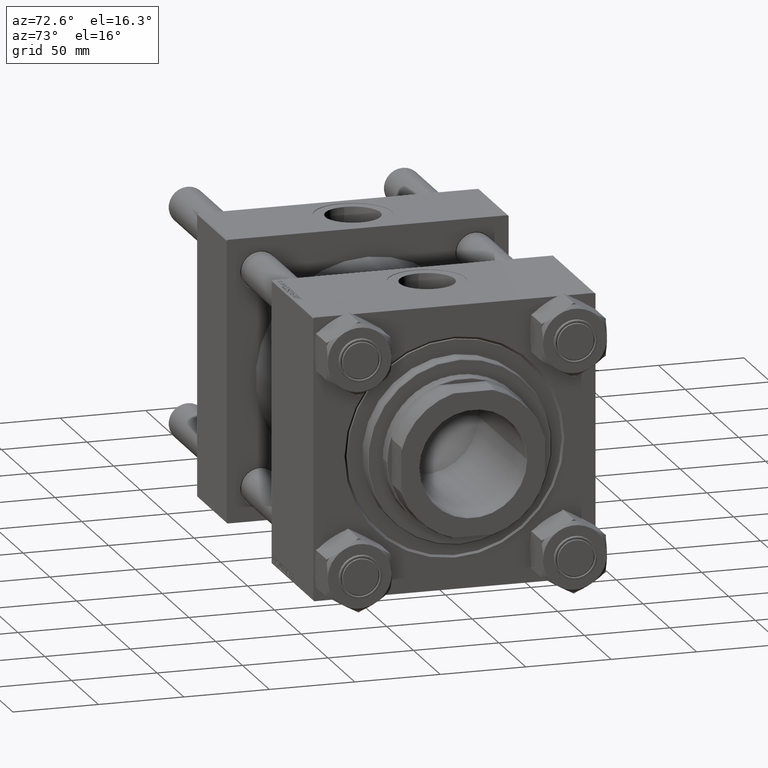
[diagram: clean part render]
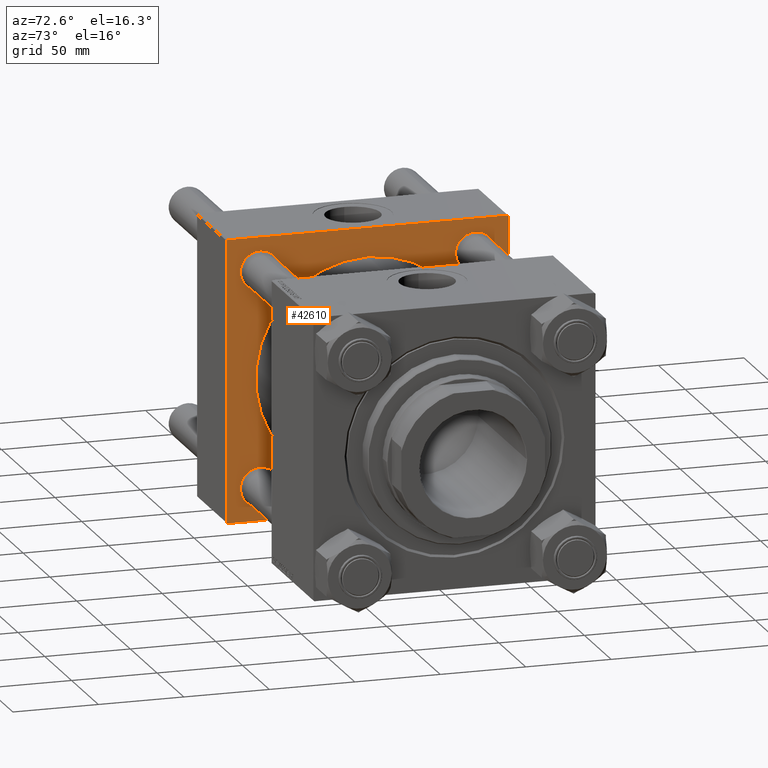
[diagram: same view with one face highlighted and labeled with its STEP entity id]
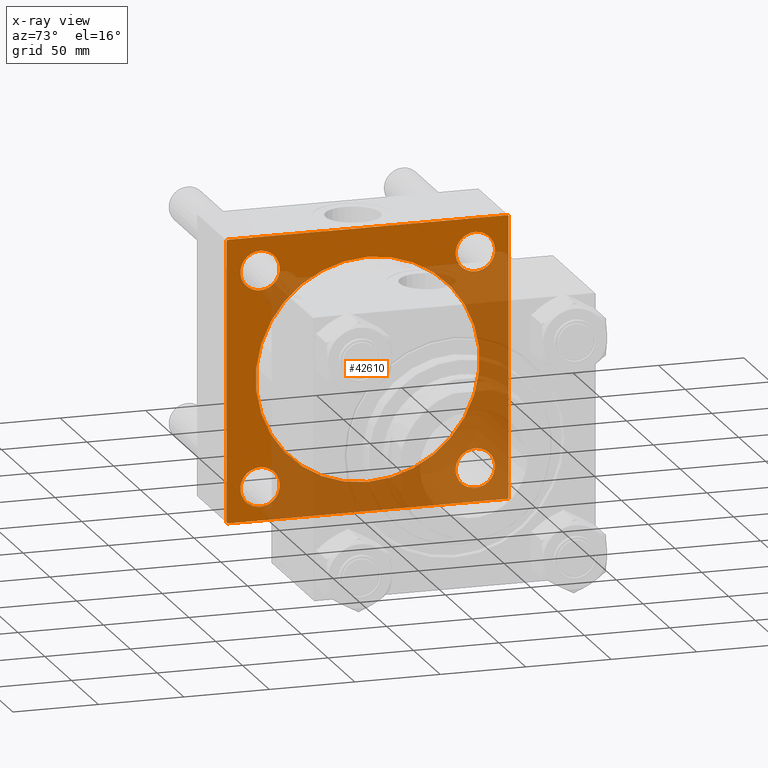
[diagram: x-ray of the same camera — body ghosted, the highlighted face saturated]
A machine part, auxiliary view. The second image highlights one B-rep face of the part: STEP entity #42610.
The next image is the same camera in x-ray: the body ghosted, the highlighted face saturated — about 52% of this face is hidden behind the body in this view.
In plain terms, the highlighted planar face has unit normal (-1, 0, 0).
Its self-contained STEP definition (entity closure, byte-faithful):
#325 = LINE ( 'NONE', #11535, #37252 ) ;
#398 = CIRCLE ( 'NONE', #1214, 11.49999999999995381 ) ;
#715 = VECTOR ( 'NONE', #38344, 1000.000000000000000 ) ;
#881 = ORIENTED_EDGE ( 'NONE', *, *, #7291, .T. ) ;
#1097 = VECTOR ( 'NONE', #24619, 1000.000000000000000 ) ;
#1214 = AXIS2_PLACEMENT_3D ( 'NONE', #16444, #15944, #4735 ) ;
#1693 = AXIS2_PLACEMENT_3D ( 'NONE', #19145, #38223, #47086 ) ;
#1729 = AXIS2_PLACEMENT_3D ( 'NONE', #31604, #3633, #26787 ) ;
#1897 = VECTOR ( 'NONE', #6964, 1000.000000000000114 ) ;
#2543 = ORIENTED_EDGE ( 'NONE', *, *, #25006, .T. ) ;
#2871 = EDGE_LOOP ( 'NONE', ( #43222, #21492 ) ) ;
#3069 = DIRECTION ( 'NONE',  ( -1.000000000000000000, 0.000000000000000000, 0.000000000000000000 ) ) ;
#3503 = VERTEX_POINT ( 'NONE', #37950 ) ;
#3580 = EDGE_CURVE ( 'NONE', #10793, #30184, #16310, .T. ) ;
#3611 = CARTESIAN_POINT ( 'NONE',  ( 55.00000000000000000, -82.49999999999997158, 82.50000000000001421 ) ) ;
#3633 = DIRECTION ( 'NONE',  ( -1.000000000000000000, 0.000000000000000000, 0.000000000000000000 ) ) ;
#3644 = CIRCLE ( 'NONE', #14217, 65.50000000000001421 ) ;
#3979 = DIRECTION ( 'NONE',  ( 0.000000000000000000, 0.000000000000000000, 1.000000000000000000 ) ) ;
#4087 = CIRCLE ( 'NONE', #28467, 11.49999999999995381 ) ;
#4357 = CARTESIAN_POINT ( 'NONE',  ( 55.00000000000000000, -62.94999999999998153, -51.45000000000006679 ) ) ;
#4610 = DIRECTION ( 'NONE',  ( 0.000000000000000000, -1.682156097916903588E-16, -1.000000000000000000 ) ) ;
#4735 = DIRECTION ( 'NONE',  ( 0.000000000000000000, 0.000000000000000000, 1.000000000000000000 ) ) ;
#4772 = VERTEX_POINT ( 'NONE', #29225 ) ;
#5099 = VECTOR ( 'NONE', #4610, 1000.000000000000000 ) ;
#5198 = EDGE_CURVE ( 'NONE', #40722, #42794, #10534, .T. ) ;
#5203 = DIRECTION ( 'NONE',  ( 0.000000000000000000, 0.000000000000000000, 1.000000000000000000 ) ) ;
#6131 = EDGE_CURVE ( 'NONE', #40722, #45536, #20303, .T. ) ;
#6144 = CARTESIAN_POINT ( 'NONE',  ( 55.00000000000000000, -82.49999999999997158, 82.00000000000001421 ) ) ;
#6266 = DIRECTION ( 'NONE',  ( 0.000000000000000000, -1.000000000000000000, -1.682156097916903588E-16 ) ) ;
#6606 = VECTOR ( 'NONE', #20670, 1000.000000000000114 ) ;
#6628 = DIRECTION ( 'NONE',  ( -1.000000000000000000, 0.000000000000000000, 0.000000000000000000 ) ) ;
#6640 = DIRECTION ( 'NONE',  ( 0.000000000000000000, 0.000000000000000000, 1.000000000000000000 ) ) ;
#6964 = DIRECTION ( 'NONE',  ( 0.000000000000000000, -0.7071067811865474617, 0.7071067811865474617 ) ) ;
#7075 = VERTEX_POINT ( 'NONE', #27112 ) ;
#7291 = EDGE_CURVE ( 'NONE', #19709, #37724, #45827, .T. ) ;
#7540 = DIRECTION ( 'NONE',  ( -1.000000000000000000, 0.000000000000000000, 0.000000000000000000 ) ) ;
#7583 = CARTESIAN_POINT ( 'NONE',  ( 55.00000000000000000, 62.95000000000000284, 74.44999999999996021 ) ) ;
#7627 = FACE_BOUND ( 'NONE', #45122, .T. ) ;
#9101 = CIRCLE ( 'NONE', #13975, 65.50000000000001421 ) ;
#9318 = CARTESIAN_POINT ( 'NONE',  ( 54.99999999999999289, 0.000000000000000000, 0.000000000000000000 ) ) ;
#9324 = ORIENTED_EDGE ( 'NONE', *, *, #6131, .F. ) ;
#9550 = EDGE_CURVE ( 'NONE', #27663, #38950, #398, .T. ) ;
#9659 = ORIENTED_EDGE ( 'NONE', *, *, #9550, .T. ) ;
#9670 = EDGE_CURVE ( 'NONE', #32768, #4772, #3644, .T. ) ;
#9884 = ORIENTED_EDGE ( 'NONE', *, *, #37750, .T. ) ;
#9925 = DIRECTION ( 'NONE',  ( 0.000000000000000000, 0.000000000000000000, 1.000000000000000000 ) ) ;
#10025 = CARTESIAN_POINT ( 'NONE',  ( 55.00000000000000000, 82.50000000000002842, -82.00000000000000000 ) ) ;
#10534 = LINE ( 'NONE', #13846, #1897 ) ;
#10644 = LINE ( 'NONE', #22344, #715 ) ;
#10793 = VERTEX_POINT ( 'NONE', #6144 ) ;
#10947 = CARTESIAN_POINT ( 'NONE',  ( 55.00000000000000000, 62.95000000000000284, 62.95000000000000284 ) ) ;
#11080 = CARTESIAN_POINT ( 'NONE',  ( 55.00000000000000000, 82.50000000000002842, -82.49999999999997158 ) ) ;
#11458 = ORIENTED_EDGE ( 'NONE', *, *, #9670, .F. ) ;
#11535 = CARTESIAN_POINT ( 'NONE',  ( 55.00000000000000000, -82.49999999999997158, 82.00000000000001421 ) ) ;
#11737 = CARTESIAN_POINT ( 'NONE',  ( 55.00000000000000000, 82.00000000000005684, -82.49999999999997158 ) ) ;
#12129 = ORIENTED_EDGE ( 'NONE', *, *, #39623, .F. ) ;
#13044 = VERTEX_POINT ( 'NONE', #7583 ) ;
#13233 = CARTESIAN_POINT ( 'NONE',  ( 55.00000000000000000, 62.95000000000000284, -51.45000000000005258 ) ) ;
#13846 = CARTESIAN_POINT ( 'NONE',  ( 55.00000000000000000, 82.00000000000005684, 82.50000000000002842 ) ) ;
#13975 = AXIS2_PLACEMENT_3D ( 'NONE', #41426, #33064, #9925 ) ;
#14217 = AXIS2_PLACEMENT_3D ( 'NONE', #9318, #29403, #25572 ) ;
#14274 = CARTESIAN_POINT ( 'NONE',  ( 55.00000000000000000, 0.000000000000000000, 0.000000000000000000 ) ) ;
#15944 = DIRECTION ( 'NONE',  ( -1.000000000000000000, 0.000000000000000000, 0.000000000000000000 ) ) ;
#15974 = VERTEX_POINT ( 'NONE', #4357 ) ;
#16243 = ORIENTED_EDGE ( 'NONE', *, *, #22762, .T. ) ;
#16310 = LINE ( 'NONE', #3611, #5099 ) ;
#16444 = CARTESIAN_POINT ( 'NONE',  ( 55.00000000000000000, 62.95000000000000284, -62.95000000000000284 ) ) ;
#16580 = CIRCLE ( 'NONE', #34445, 11.49999999999995381 ) ;
#17734 = CIRCLE ( 'NONE', #35618, 11.49999999999995381 ) ;
#18352 = ORIENTED_EDGE ( 'NONE', *, *, #21626, .T. ) ;
#18599 = CARTESIAN_POINT ( 'NONE',  ( 55.00000000000000000, -62.94999999999998153, -74.44999999999997442 ) ) ;
#18605 = VECTOR ( 'NONE', #6266, 1000.000000000000000 ) ;
#18646 = EDGE_LOOP ( 'NONE', ( #46536, #9884, #9324, #18978, #16243, #18352, #45243, #36250 ) ) ;
#18978 = ORIENTED_EDGE ( 'NONE', *, *, #5198, .T. ) ;
#19090 = FACE_BOUND ( 'NONE', #30614, .T. ) ;
#19145 = CARTESIAN_POINT ( 'NONE',  ( 55.00000000000000000, 62.95000000000000284, -62.95000000000000284 ) ) ;
#19336 = FACE_BOUND ( 'NONE', #2871, .T. ) ;
#19709 = VERTEX_POINT ( 'NONE', #36924 ) ;
#20303 = LINE ( 'NONE', #24369, #1097 ) ;
#20349 = ORIENTED_EDGE ( 'NONE', *, *, #45300, .T. ) ;
#20415 = CARTESIAN_POINT ( 'NONE',  ( 55.00000000000000000, -62.94999999999998153, 51.45000000000006679 ) ) ;
#20582 = AXIS2_PLACEMENT_3D ( 'NONE', #14274, #3069, #6640 ) ;
#20670 = DIRECTION ( 'NONE',  ( -0.000000000000000000, 0.7071067811865474617, 0.7071067811865474617 ) ) ;
#20815 = EDGE_CURVE ( 'NONE', #30184, #45352, #34556, .T. ) ;
#21004 = DIRECTION ( 'NONE',  ( 0.000000000000000000, 0.000000000000000000, 1.000000000000000000 ) ) ;
#21492 = ORIENTED_EDGE ( 'NONE', *, *, #28915, .T. ) ;
#21626 = EDGE_CURVE ( 'NONE', #7075, #10793, #325, .T. ) ;
#22344 = CARTESIAN_POINT ( 'NONE',  ( 55.00000000000000000, 82.50000000000002842, 82.50000000000002842 ) ) ;
#22413 = PLANE ( 'NONE',  #20582 ) ;
#22762 = EDGE_CURVE ( 'NONE', #42794, #7075, #10644, .T. ) ;
#23033 = EDGE_CURVE ( 'NONE', #30495, #45352, #26092, .T. ) ;
#23937 = VERTEX_POINT ( 'NONE', #18599 ) ;
#24369 = CARTESIAN_POINT ( 'NONE',  ( 55.00000000000000000, 82.50000000000002842, 82.50000000000002842 ) ) ;
#24619 = DIRECTION ( 'NONE',  ( 0.000000000000000000, 0.000000000000000000, -1.000000000000000000 ) ) ;
#24797 = CARTESIAN_POINT ( 'NONE',  ( 55.00000000000000000, 62.95000000000000284, 62.95000000000000284 ) ) ;
#25006 = EDGE_CURVE ( 'NONE', #37724, #19709, #17734, .T. ) ;
#25572 = DIRECTION ( 'NONE',  ( 0.000000000000000000, 0.000000000000000000, 1.000000000000000000 ) ) ;
#25813 = VECTOR ( 'NONE', #26919, 999.9999999999998863 ) ;
#26092 = LINE ( 'NONE', #11080, #18605 ) ;
#26787 = DIRECTION ( 'NONE',  ( 0.000000000000000000, 0.000000000000000000, 1.000000000000000000 ) ) ;
#26919 = DIRECTION ( 'NONE',  ( 0.000000000000000000, 0.7071067811865376918, -0.7071067811865574537 ) ) ;
#27112 = CARTESIAN_POINT ( 'NONE',  ( 55.00000000000000000, -81.99999999999997158, 82.50000000000001421 ) ) ;
#27663 = VERTEX_POINT ( 'NONE', #13233 ) ;
#28360 = CIRCLE ( 'NONE', #41324, 11.49999999999995381 ) ;
#28467 = AXIS2_PLACEMENT_3D ( 'NONE', #10947, #6628, #50095 ) ;
#28915 = EDGE_CURVE ( 'NONE', #15974, #23937, #28360, .T. ) ;
#29137 = DIRECTION ( 'NONE',  ( -1.000000000000000000, 0.000000000000000000, 0.000000000000000000 ) ) ;
#29225 = CARTESIAN_POINT ( 'NONE',  ( 54.99999999999999289, 8.021436534415164826E-15, -65.50000000000001421 ) ) ;
#29372 = CIRCLE ( 'NONE', #1729, 11.49999999999995381 ) ;
#29403 = DIRECTION ( 'NONE',  ( 1.000000000000000000, -0.000000000000000000, -0.000000000000000000 ) ) ;
#30184 = VERTEX_POINT ( 'NONE', #30644 ) ;
#30435 = DIRECTION ( 'NONE',  ( -1.000000000000000000, 0.000000000000000000, 0.000000000000000000 ) ) ;
#30495 = VERTEX_POINT ( 'NONE', #11737 ) ;
#30614 = EDGE_LOOP ( 'NONE', ( #2543, #881 ) ) ;
#30644 = CARTESIAN_POINT ( 'NONE',  ( 55.00000000000000000, -82.50000000000000000, -81.99999999999998579 ) ) ;
#31113 = EDGE_LOOP ( 'NONE', ( #20349, #45496 ) ) ;
#31604 = CARTESIAN_POINT ( 'NONE',  ( 55.00000000000000000, -62.94999999999998153, -62.95000000000001705 ) ) ;
#32353 = CARTESIAN_POINT ( 'NONE',  ( 55.00000000000000000, 82.50000000000002842, -82.00000000000000000 ) ) ;
#32564 = CIRCLE ( 'NONE', #1693, 11.49999999999995381 ) ;
#32768 = VERTEX_POINT ( 'NONE', #39584 ) ;
#33064 = DIRECTION ( 'NONE',  ( 1.000000000000000000, -0.000000000000000000, -0.000000000000000000 ) ) ;
#33749 = CARTESIAN_POINT ( 'NONE',  ( 55.00000000000000000, -62.94999999999998153, 62.95000000000001705 ) ) ;
#34029 = CARTESIAN_POINT ( 'NONE',  ( 55.00000000000000000, 82.00000000000005684, 82.50000000000002842 ) ) ;
#34445 = AXIS2_PLACEMENT_3D ( 'NONE', #24797, #48424, #5203 ) ;
#34556 = LINE ( 'NONE', #46237, #25813 ) ;
#35618 = AXIS2_PLACEMENT_3D ( 'NONE', #33749, #30435, #41115 ) ;
#36021 = EDGE_CURVE ( 'NONE', #13044, #3503, #4087, .T. ) ;
#36250 = ORIENTED_EDGE ( 'NONE', *, *, #20815, .T. ) ;
#36737 = CARTESIAN_POINT ( 'NONE',  ( 55.00000000000000000, -82.00000000000000000, -82.50000000000000000 ) ) ;
#36913 = EDGE_CURVE ( 'NONE', #38950, #27663, #32564, .T. ) ;
#36924 = CARTESIAN_POINT ( 'NONE',  ( 55.00000000000000000, -62.94999999999998153, 74.44999999999997442 ) ) ;
#37252 = VECTOR ( 'NONE', #38998, 1000.000000000000114 ) ;
#37496 = CARTESIAN_POINT ( 'NONE',  ( 55.00000000000000000, -62.94999999999998153, 62.95000000000001705 ) ) ;
#37621 = EDGE_CURVE ( 'NONE', #23937, #15974, #29372, .T. ) ;
#37696 = AXIS2_PLACEMENT_3D ( 'NONE', #37496, #29137, #21004 ) ;
#37724 = VERTEX_POINT ( 'NONE', #20415 ) ;
#37750 = EDGE_CURVE ( 'NONE', #30495, #45536, #40740, .T. ) ;
#37950 = CARTESIAN_POINT ( 'NONE',  ( 55.00000000000000000, 62.95000000000000284, 51.45000000000005258 ) ) ;
#38220 = EDGE_LOOP ( 'NONE', ( #40156, #9659 ) ) ;
#38223 = DIRECTION ( 'NONE',  ( -1.000000000000000000, 0.000000000000000000, 0.000000000000000000 ) ) ;
#38344 = DIRECTION ( 'NONE',  ( 0.000000000000000000, -1.000000000000000000, -8.410780489584519171E-17 ) ) ;
#38408 = FACE_BOUND ( 'NONE', #38220, .T. ) ;
#38634 = CARTESIAN_POINT ( 'NONE',  ( 55.00000000000000000, 82.50000000000002842, 82.00000000000005684 ) ) ;
#38664 = FACE_OUTER_BOUND ( 'NONE', #18646, .T. ) ;
#38950 = VERTEX_POINT ( 'NONE', #44112 ) ;
#38998 = DIRECTION ( 'NONE',  ( -0.000000000000000000, -0.7071067811865474617, -0.7071067811865474617 ) ) ;
#39584 = CARTESIAN_POINT ( 'NONE',  ( 54.99999999999999289, 0.000000000000000000, 65.50000000000001421 ) ) ;
#39623 = EDGE_CURVE ( 'NONE', #4772, #32768, #9101, .T. ) ;
#40156 = ORIENTED_EDGE ( 'NONE', *, *, #36913, .T. ) ;
#40722 = VERTEX_POINT ( 'NONE', #38634 ) ;
#40740 = LINE ( 'NONE', #32353, #6606 ) ;
#41115 = DIRECTION ( 'NONE',  ( 0.000000000000000000, 0.000000000000000000, 1.000000000000000000 ) ) ;
#41324 = AXIS2_PLACEMENT_3D ( 'NONE', #42374, #7540, #3979 ) ;
#41426 = CARTESIAN_POINT ( 'NONE',  ( 54.99999999999999289, 0.000000000000000000, 0.000000000000000000 ) ) ;
#42374 = CARTESIAN_POINT ( 'NONE',  ( 55.00000000000000000, -62.94999999999998153, -62.95000000000001705 ) ) ;
#42610 = ADVANCED_FACE ( 'NONE', ( #19336, #38408, #19090, #49605, #7627, #38664 ), #22413, .F. ) ;
#42794 = VERTEX_POINT ( 'NONE', #34029 ) ;
#43222 = ORIENTED_EDGE ( 'NONE', *, *, #37621, .T. ) ;
#44112 = CARTESIAN_POINT ( 'NONE',  ( 55.00000000000000000, 62.95000000000000284, -74.44999999999996021 ) ) ;
#45122 = EDGE_LOOP ( 'NONE', ( #11458, #12129 ) ) ;
#45243 = ORIENTED_EDGE ( 'NONE', *, *, #3580, .T. ) ;
#45300 = EDGE_CURVE ( 'NONE', #3503, #13044, #16580, .T. ) ;
#45352 = VERTEX_POINT ( 'NONE', #36737 ) ;
#45496 = ORIENTED_EDGE ( 'NONE', *, *, #36021, .T. ) ;
#45536 = VERTEX_POINT ( 'NONE', #10025 ) ;
#45827 = CIRCLE ( 'NONE', #37696, 11.49999999999995381 ) ;
#46237 = CARTESIAN_POINT ( 'NONE',  ( 55.00000000000000000, -82.00000000000000000, -82.50000000000000000 ) ) ;
#46536 = ORIENTED_EDGE ( 'NONE', *, *, #23033, .F. ) ;
#47086 = DIRECTION ( 'NONE',  ( 0.000000000000000000, 0.000000000000000000, 1.000000000000000000 ) ) ;
#48424 = DIRECTION ( 'NONE',  ( -1.000000000000000000, 0.000000000000000000, 0.000000000000000000 ) ) ;
#49605 = FACE_BOUND ( 'NONE', #31113, .T. ) ;
#50095 = DIRECTION ( 'NONE',  ( 0.000000000000000000, 0.000000000000000000, 1.000000000000000000 ) ) ;